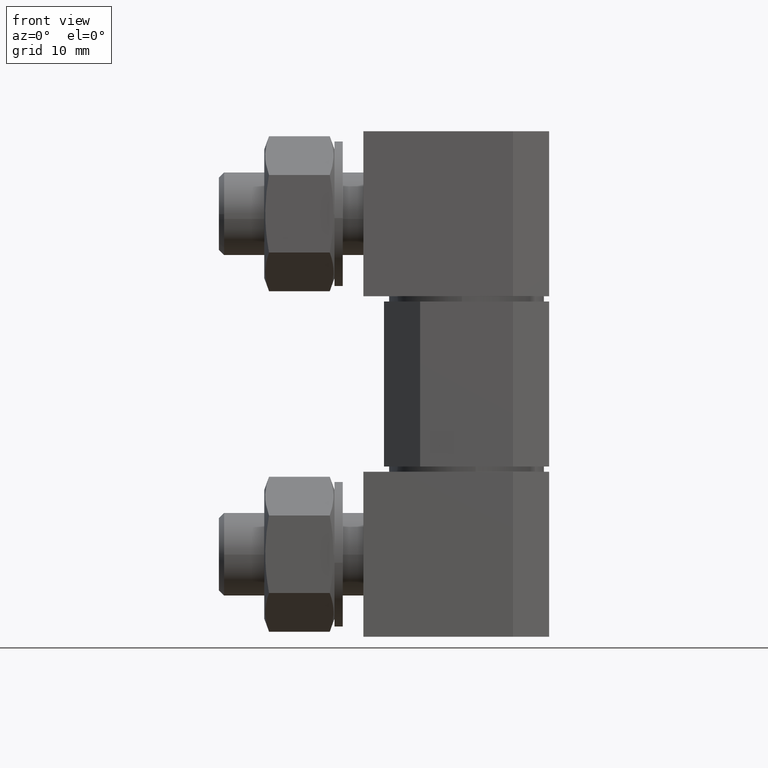
[diagram: clean part render]
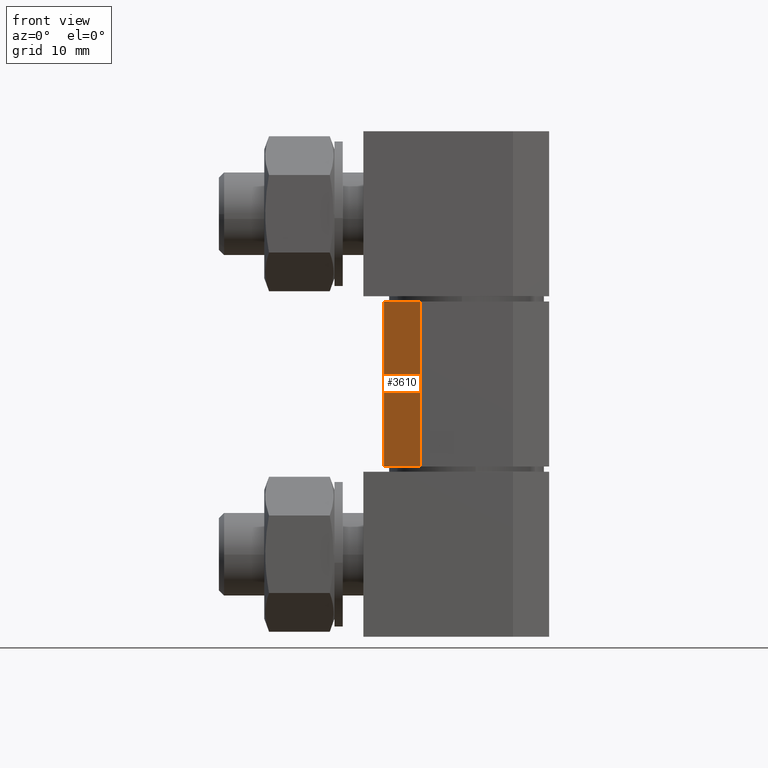
[diagram: same view with one face highlighted and labeled with its STEP entity id]
A machine part, front view. The second image highlights one B-rep face of the part: STEP entity #3610.
In plain terms, the highlighted face is a freeform B-spline surface patch.
Its self-contained STEP definition (entity closure, byte-faithful):
#3416=CARTESIAN_POINT('',(-8.000000379979600,-4.500000213738500,16.500000783707950));
#3417=VERTEX_POINT('',#3416);
#3444=CARTESIAN_POINT('',(-4.500000213738519,-8.000000379979710,16.500000783707950));
#3445=VERTEX_POINT('',#3444);
#3451=CARTESIAN_POINT('',(-8.000000379979600,-4.500000213738500,16.500000783707950));
#3452=CARTESIAN_POINT('',(-4.500000213738519,-8.000000379979710,16.500000783707950));
#3453=QUASI_UNIFORM_CURVE('',1,(#3451,#3452),.UNSPECIFIED.,.F.,.U.);
#3454=EDGE_CURVE('',#3417,#3445,#3453,.T.);
#3472=CARTESIAN_POINT('',(-8.000000379979600,-4.500000213738500,32.500001543667047));
#3473=VERTEX_POINT('',#3472);
#3479=CARTESIAN_POINT('',(-4.500000213738519,-8.000000379979710,32.500001543667047));
#3480=VERTEX_POINT('',#3479);
#3481=CARTESIAN_POINT('',(-8.000000379979600,-4.500000213738500,32.500001543667047));
#3482=CARTESIAN_POINT('',(-4.500000213738519,-8.000000379979710,32.500001543667047));
#3483=QUASI_UNIFORM_CURVE('',1,(#3481,#3482),.UNSPECIFIED.,.F.,.U.);
#3484=EDGE_CURVE('',#3473,#3480,#3483,.T.);
#3587=CARTESIAN_POINT('',(-4.500000213738519,-8.000000379979710,32.500001543667047));
#3588=CARTESIAN_POINT('',(-4.500000213738519,-8.000000379979710,16.500000783707950));
#3589=QUASI_UNIFORM_CURVE('',1,(#3587,#3588),.UNSPECIFIED.,.F.,.U.);
#3590=EDGE_CURVE('',#3480,#3445,#3589,.T.);
#3595=CARTESIAN_POINT('',(-4.325175290433911,-8.174825303284324,15.700799989906219));
#3596=CARTESIAN_POINT('',(-8.174825209406889,-4.325175384311205,15.700799989906219));
#3597=CARTESIAN_POINT('',(-4.325175290433911,-8.174825303284324,33.299199619496846));
#3598=CARTESIAN_POINT('',(-8.174825209406889,-4.325175384311205,33.299199619496846));
#3599=B_SPLINE_SURFACE_WITH_KNOTS('',1,1,((#3595,#3597),(#3596,#3598)),.UNSPECIFIED.,.F.,.F.,.U.,(2,2),(2,2),(0.0,5.444227125800173),(0.0,17.598399629590620),.UNSPECIFIED.);
#3600=ORIENTED_EDGE('',*,*,#3454,.T.);
#3601=ORIENTED_EDGE('',*,*,#3590,.F.);
#3602=ORIENTED_EDGE('',*,*,#3484,.F.);
#3603=CARTESIAN_POINT('',(-8.000000379979600,-4.500000213738500,32.500001543667047));
#3604=CARTESIAN_POINT('',(-8.000000379979600,-4.500000213738500,16.500000783707950));
#3605=QUASI_UNIFORM_CURVE('',1,(#3603,#3604),.UNSPECIFIED.,.F.,.U.);
#3606=EDGE_CURVE('',#3473,#3417,#3605,.T.);
#3607=ORIENTED_EDGE('',*,*,#3606,.T.);
#3608=EDGE_LOOP('',(#3600,#3601,#3602,#3607));
#3609=FACE_OUTER_BOUND('',#3608,.T.);
#3610=ADVANCED_FACE('',(#3609),#3599,.F.);